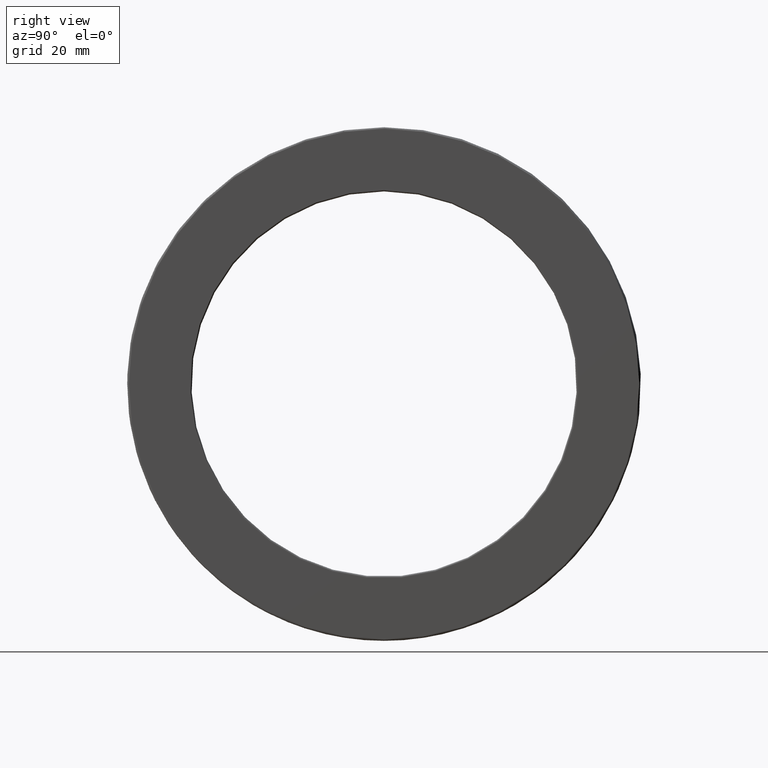
[diagram: clean part render]
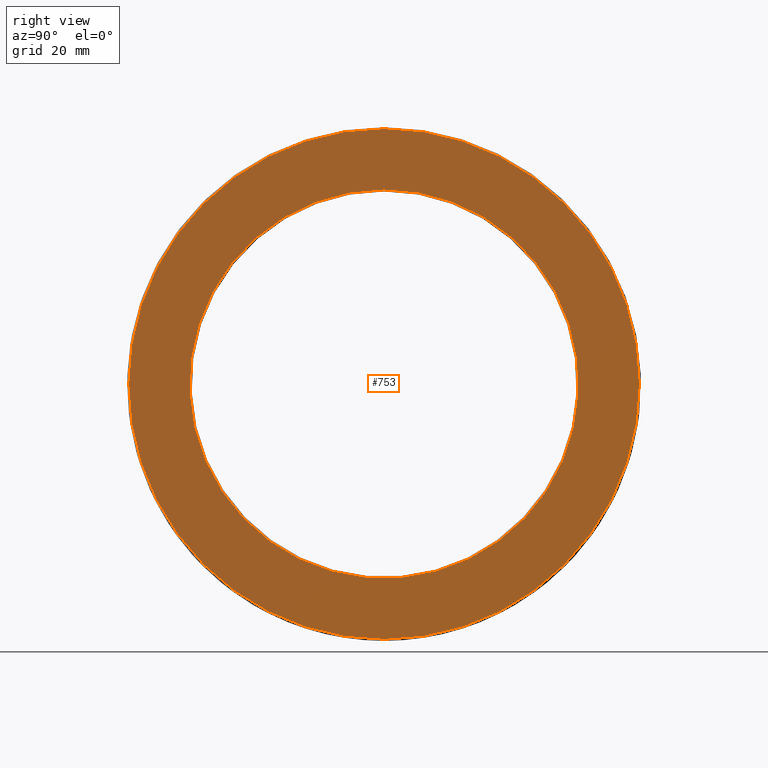
[diagram: same view with one face highlighted and labeled with its STEP entity id]
A machine part, right view. The second image highlights one B-rep face of the part: STEP entity #753.
In plain terms, the highlighted planar face has unit normal (1, 0, 0).
Its self-contained STEP definition (entity closure, byte-faithful):
#36 = CIRCLE ( 'NONE', #189, 2.381999999999999700 ) ;
#46 = FACE_OUTER_BOUND ( 'NONE', #111, .T. ) ;
#111 = EDGE_LOOP ( 'NONE', ( #647 ) ) ;
#135 = DIRECTION ( 'NONE',  ( 0.0000000000000000000, 0.0000000000000000000, 1.000000000000000000 ) ) ;
#152 = VERTEX_POINT ( 'NONE', #724 ) ;
#181 = EDGE_CURVE ( 'NONE', #185, #185, #429, .T. ) ;
#185 = VERTEX_POINT ( 'NONE', #536 ) ;
#189 = AXIS2_PLACEMENT_3D ( 'NONE', #621, #694, #396 ) ;
#213 = CARTESIAN_POINT ( 'NONE',  ( 0.5315000000000001900, 0.0000000000000000000, 0.0000000000000000000 ) ) ;
#276 = AXIS2_PLACEMENT_3D ( 'NONE', #213, #453, #135 ) ;
#297 = FACE_BOUND ( 'NONE', #401, .T. ) ;
#327 = AXIS2_PLACEMENT_3D ( 'NONE', #649, #635, #399 ) ;
#396 = DIRECTION ( 'NONE',  ( 0.0000000000000000000, 0.0000000000000000000, 1.000000000000000000 ) ) ;
#399 = DIRECTION ( 'NONE',  ( 0.0000000000000000000, 0.0000000000000000000, -1.000000000000000000 ) ) ;
#401 = EDGE_LOOP ( 'NONE', ( #637 ) ) ;
#429 = CIRCLE ( 'NONE', #276, 3.129500000000000600 ) ;
#453 = DIRECTION ( 'NONE',  ( -1.000000000000000000, -0.0000000000000000000, -0.0000000000000000000 ) ) ;
#536 = CARTESIAN_POINT ( 'NONE',  ( 0.5315000000000001900, 0.0000000000000000000, 3.129500000000000600 ) ) ;
#621 = CARTESIAN_POINT ( 'NONE',  ( 0.5315000000000001900, 0.0000000000000000000, 0.0000000000000000000 ) ) ;
#635 = DIRECTION ( 'NONE',  ( 1.000000000000000000, 0.0000000000000000000, 0.0000000000000000000 ) ) ;
#637 = ORIENTED_EDGE ( 'NONE', *, *, #642, .T. ) ;
#642 = EDGE_CURVE ( 'NONE', #152, #152, #36, .T. ) ;
#647 = ORIENTED_EDGE ( 'NONE', *, *, #181, .F. ) ;
#649 = CARTESIAN_POINT ( 'NONE',  ( 0.5315000000000001900, 0.0000000000000000000, 0.0000000000000000000 ) ) ;
#694 = DIRECTION ( 'NONE',  ( -1.000000000000000000, -0.0000000000000000000, -0.0000000000000000000 ) ) ;
#724 = CARTESIAN_POINT ( 'NONE',  ( 0.5315000000000001900, 0.0000000000000000000, 2.381999999999999700 ) ) ;
#753 = ADVANCED_FACE ( 'NONE', ( #297, #46 ), #765, .T. ) ;
#765 = PLANE ( 'NONE',  #327 ) ;